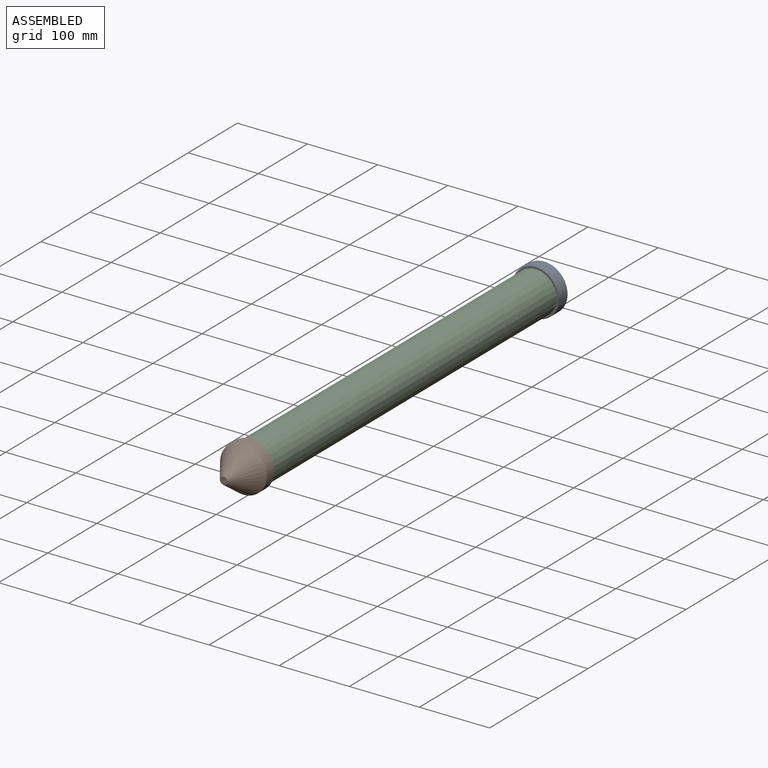
[diagram: assembled view]
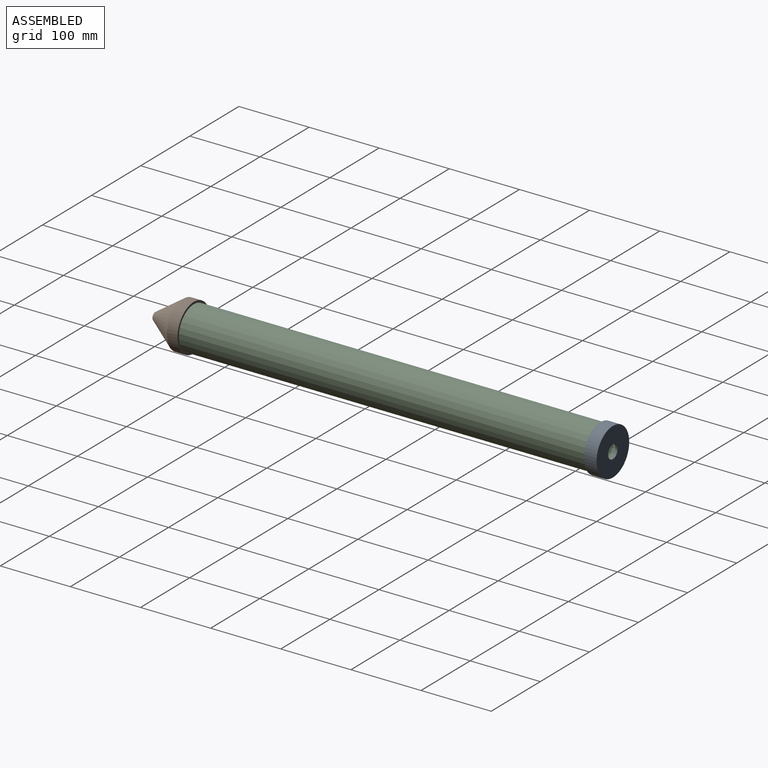
[diagram: assembled view, second angle]
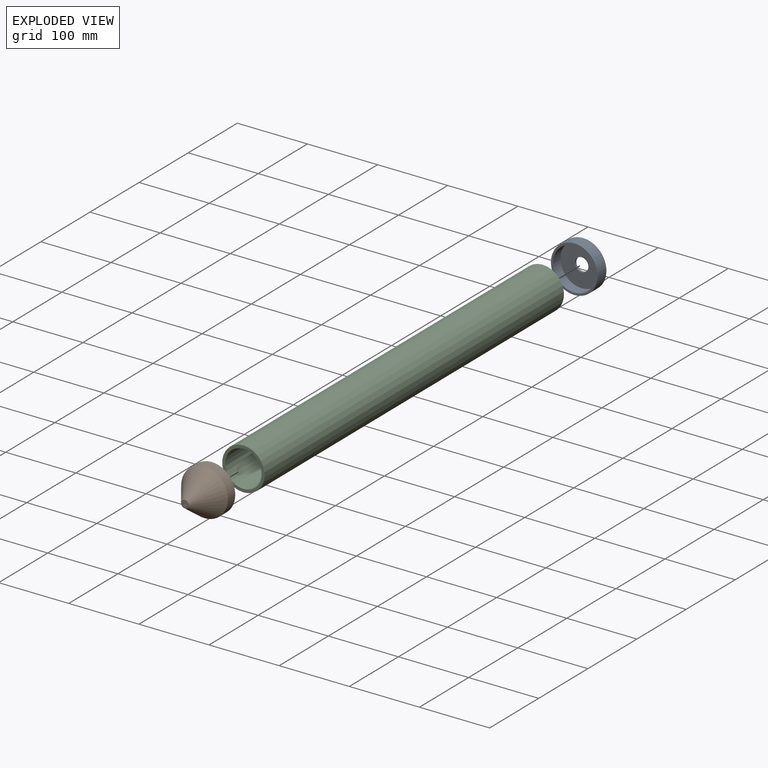
[diagram: exploded view]
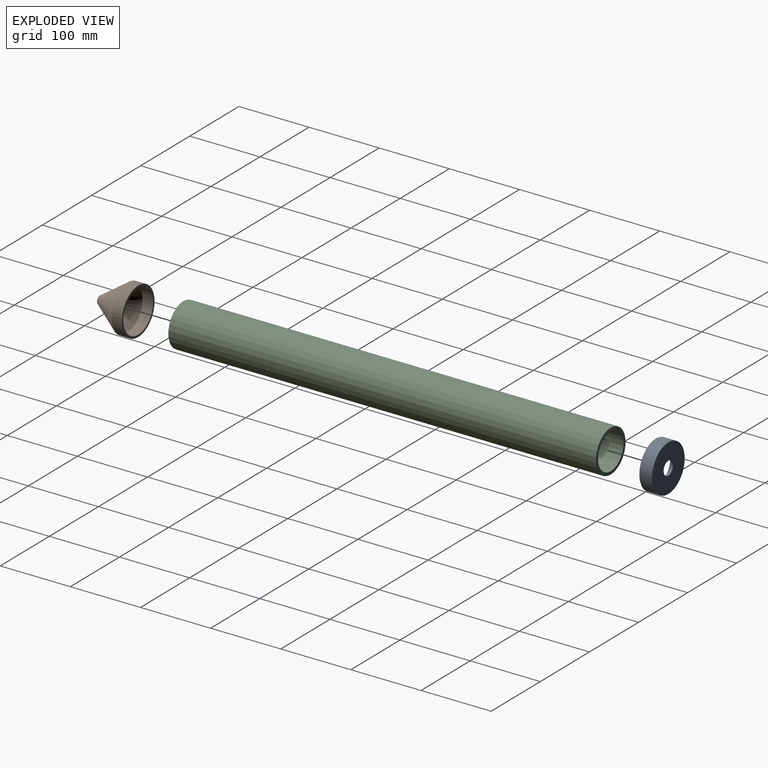
[diagram: exploded view, second angle]
ASSEMBLY  parts=3 mates=2
PART A: 6 faces, bbox 66.6x18x66.6 mm
  f0: cylinder r=30.28mm len=60.55mm, axis (0,1,0), area 2853.5mm2, adj f2,f3
  f1: cylinder r=33.28mm len=66.55mm, axis (0,1,0), area 3763.5mm2, adj f2,f5
  f2: plane 66.55x66.55mm, normal (0,-1,0), area 599mm2, adj f0,f1
  f3: plane 60.55x60.55mm, normal (0,-1,0), area 2591mm2, adj f0,f4
  f4: cylinder r=9.59mm len=19.18mm, axis (0,-1,0), area 180.7mm2, adj f3,f5
  f5: plane 66.55x66.55mm, normal (0,1,0), area 3190mm2, adj f1,f4
PART B: 6 faces, bbox 66.6x55x66.6 mm
  f0: cylinder r=30.28mm len=60.55mm, axis (0,-1,0), area 2853.5mm2, adj f2,f3
  f1: cylinder r=33.28mm len=66.55mm, axis (0,-1,0), area 3136.3mm2, adj f2,f5
  f2: plane 66.55x66.55mm, normal (0,1,0), area 599mm2, adj f0,f1
  f3: cone r=2.5mm half-angle=34.8deg, axis (0,1,0), area 5014.6mm2, adj f0,f4
  f4: plane 11x11mm, normal (0,-1,0), area 75.4mm2, adj f3,f5
  f5: cone r=33.28mm half-angle=34.8deg, axis (0,1,0), area 5932.5mm2, adj f1,f4
PART C: 4 faces, bbox 60.6x609.6x60.6 mm
  f0: cylinder r=25.95mm len=609.6mm, axis (0,-1,0), area 99379.5mm2, adj f2,f3
  f1: cylinder r=30.28mm len=609.6mm, axis (0,-1,0), area 115967.1mm2, adj f2,f3
  f2: plane 60.55x60.55mm, normal (0,1,0), area 764.9mm2, adj f0,f1
  f3: plane 60.55x60.55mm, normal (0,-1,0), area 764.9mm2, adj f0,f1
PLACE A t=(-93.05,45.67,130.35)mm
PLACE B t=(-93.05,45.67,130.35)mm
PLACE C t=(-93.05,45.67,130.35)mm
MATE fastened C.f1 <-> B.f3  axis (0,-1,0) through (-93.05,45.67,130.35)mm
MATE fastened C.f1 <-> A.f0  axis (0,1,0) through (-93.05,655.27,130.35)mm
